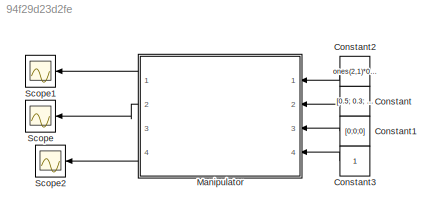
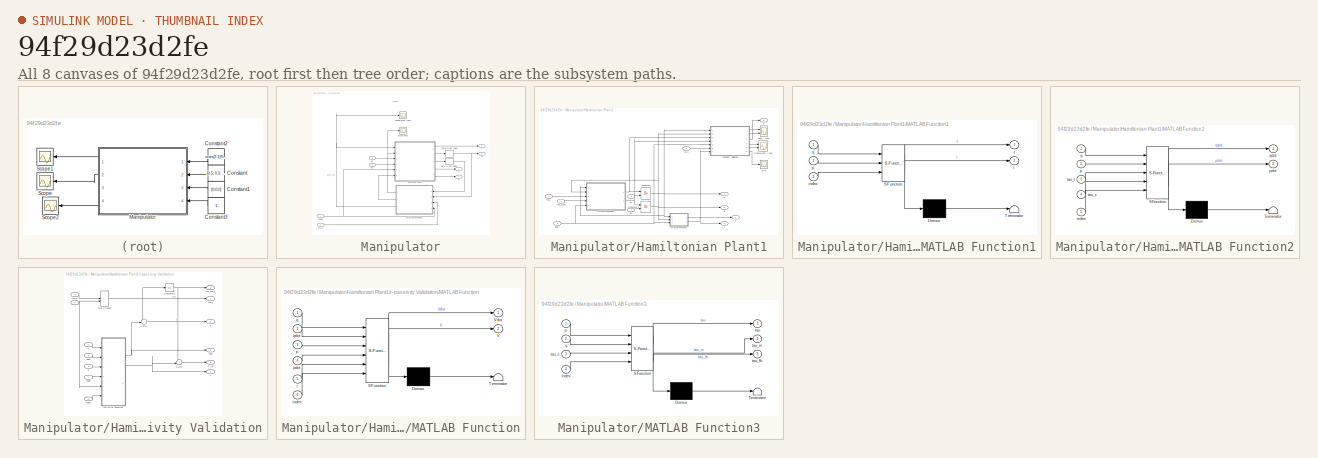
[diagram: thumbnail index - all 8 canvases of the model, root first then tree order]
MODEL slx_94f29d23d2fe
KIND model
CONFIG AbsTol = auto
CONFIG EnableMultiTasking = off
CONFIG FixedStep = auto
CONFIG MaxStep = auto
CONFIG MinStep = auto
CONFIG RelTol = 1e-3
CONFIG SampleTimeConstraint = Unconstrained
CONFIG Solver = VariableStepAuto
CONFIG SolverName = VariableStepAuto
CONFIG StartTime = 0.0
CONFIG StopTime = 10
BLOCK [Constant] Constant
  Value = [0.5; 0.3; -0.6]
BLOCK [Constant] Constant1
  Value = [0;0;0]
BLOCK [Constant] Constant2
  Value = ones(2,1)*0.01
BLOCK [Constant] Constant3
BLOCK [SubSystem] Manipulator
  Ports = [4, 4]
  RequestExecContextInheritance = off
BLOCK [Scope] Manipulator/Cooperative Input
  Floating = off
  NumInputPorts = 1
  Ports = [1]
  ScopeSpecificationString = Simulink.scopes.TimeScopeBlockCfg('CurrentConfiguration', extmgr.ConfigurationSet(extmgr.Configuration('Core','General UI',true),extmgr.Configuration('Core','Source UI',true),extmgr.Configuration('Sources','WiredSimulink',true,'DataLoggingVariableName','ScopeData1'),extmgr.Configuration('Visuals','Time Domain',true,'SerializedDisplays',{struct('MinYLimReal','-0.98424','MaxYLimReal','1.38477','YLab...<+1441ch>
BLOCK [SubSystem] Manipulator/Hamiltonian Plant1
  Ports = [6, 5]
  RequestExecContextInheritance = off
BLOCK [Scope] Manipulator/Hamiltonian Plant1/Integral Vdot + tau'r
  Floating = off
  NumInputPorts = 2
  Ports = [2]
  ScopeSpecificationString = Simulink.scopes.TimeScopeBlockCfg('CurrentConfiguration', extmgr.ConfigurationSet(extmgr.Configuration('Core','General UI',true),extmgr.Configuration('Core','Source UI',true),extmgr.Configuration('Sources','WiredSimulink',true,'DataLoggingVariableName','ScopeData5'),extmgr.Configuration('Visuals','Time Domain',true,'SerializedDisplays',{struct('MinYLimReal','-31.59653','MaxYLimReal','3.94405','YLa...<+1578ch>
BLOCK [Integrator] Manipulator/Hamiltonian Plant1/Integrator
  InitialCondition = q01
  InitialConditionSource = external
  Ports = [2, 1]
BLOCK [Integrator] Manipulator/Hamiltonian Plant1/Integrator1
  InitialCondition = p02
  InitialConditionSource = external
  Ports = [2, 1]
BLOCK [SubSystem] Manipulator/Hamiltonian Plant1/MATLAB Function1
  ErrorFcn = Stateflow.Translate.translate
  PermitHierarchicalResolution = ExplicitOnly
  Ports = [3, 2]
  RequestExecContextInheritance = off
  SFBlockType = MATLAB Function
  TreatAsAtomicUnit = on
BLOCK [Demux] Manipulator/Hamiltonian Plant1/MATLAB Function1/ Demux 
  Outputs = 1
  Ports = [1, 1]
BLOCK [S-Function] Manipulator/Hamiltonian Plant1/MATLAB Function1/ SFunction 
  EnableBusSupport = on
  FunctionName = sf_sfun
  PortCounts = [3 3]
  Ports = [3, 3]
  SFcnIsStateOwnerBlock = off
  SFunctionDeploymentMode = off
  Tag = Stateflow S-Function SingleAgent_Manipulator 22
BLOCK [Terminator] Manipulator/Hamiltonian Plant1/MATLAB Function1/ Terminator 
BLOCK [Inport] Manipulator/Hamiltonian Plant1/MATLAB Function1/index
  IconDisplay = Port number
  Port = 3
BLOCK [Inport] Manipulator/Hamiltonian Plant1/MATLAB Function1/p
  IconDisplay = Port number
  Port = 2
BLOCK [Inport] Manipulator/Hamiltonian Plant1/MATLAB Function1/q
  IconDisplay = Port number
BLOCK [Outport] Manipulator/Hamiltonian Plant1/MATLAB Function1/r
  IconDisplay = Port number
  Port = 2
BLOCK [Outport] Manipulator/Hamiltonian Plant1/MATLAB Function1/z
  IconDisplay = Port number
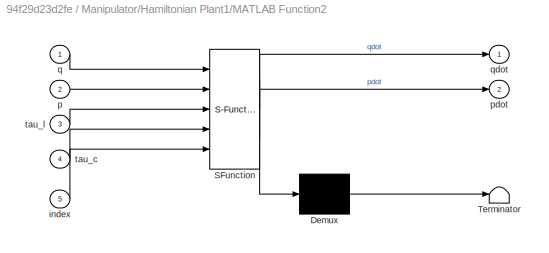
BLOCK [SubSystem] Manipulator/Hamiltonian Plant1/MATLAB Function2
  ErrorFcn = Stateflow.Translate.translate
  PermitHierarchicalResolution = ExplicitOnly
  Ports = [5, 2]
  RequestExecContextInheritance = off
  SFBlockType = MATLAB Function
  TreatAsAtomicUnit = on
BLOCK [Demux] Manipulator/Hamiltonian Plant1/MATLAB Function2/ Demux 
  Outputs = 1
  Ports = [1, 1]
BLOCK [S-Function] Manipulator/Hamiltonian Plant1/MATLAB Function2/ SFunction 
  EnableBusSupport = on
  FunctionName = sf_sfun
  PortCounts = [5 3]
  Ports = [5, 3]
  SFcnIsStateOwnerBlock = off
  SFunctionDeploymentMode = off
  Tag = Stateflow S-Function SingleAgent_Manipulator 23
BLOCK [Terminator] Manipulator/Hamiltonian Plant1/MATLAB Function2/ Terminator 
BLOCK [Inport] Manipulator/Hamiltonian Plant1/MATLAB Function2/index
  IconDisplay = Port number
  Port = 5
BLOCK [Inport] Manipulator/Hamiltonian Plant1/MATLAB Function2/p
  IconDisplay = Port number
  Port = 2
BLOCK [Outport] Manipulator/Hamiltonian Plant1/MATLAB Function2/pdot
  IconDisplay = Port number
  Port = 2
BLOCK [Inport] Manipulator/Hamiltonian Plant1/MATLAB Function2/q
  IconDisplay = Port number
BLOCK [Outport] Manipulator/Hamiltonian Plant1/MATLAB Function2/qdot
  IconDisplay = Port number
BLOCK [Inport] Manipulator/Hamiltonian Plant1/MATLAB Function2/tau_c
  IconDisplay = Port number
  Port = 4
BLOCK [Inport] Manipulator/Hamiltonian Plant1/MATLAB Function2/tau_l
  IconDisplay = Port number
  Port = 3
BLOCK [Outport] Manipulator/Hamiltonian Plant1/S
  IconDisplay = Port number
  Port = 5
BLOCK [Scope] Manipulator/Hamiltonian Plant1/S_Int
  Floating = off
  NumInputPorts = 1
  Ports = [1]
  ScopeSpecificationString = Simulink.scopes.TimeScopeBlockCfg('CurrentConfiguration', extmgr.ConfigurationSet(extmgr.Configuration('Core','General UI',true),extmgr.Configuration('Core','Source UI',true),extmgr.Configuration('Sources','WiredSimulink',true,'DataLoggingVariableName','ScopeData1'),extmgr.Configuration('Visuals','Time Domain',true,'SerializedDisplays',{struct('MinYLimReal','-327.91107','MaxYLimReal','36.43456','Y...<+1511ch>
BLOCK [Inport] Manipulator/Hamiltonian Plant1/index
  IconDisplay = Port number
  Port = 5
BLOCK [Outport] Manipulator/Hamiltonian Plant1/p
  IconDisplay = Port number
  Port = 3
BLOCK [Inport] Manipulator/Hamiltonian Plant1/p0
  IconDisplay = Port number
  Port = 4
BLOCK [Outport] Manipulator/Hamiltonian Plant1/q
  IconDisplay = Port number
  Port = 2
BLOCK [Inport] Manipulator/Hamiltonian Plant1/q0
  IconDisplay = Port number
  Port = 3
BLOCK [Outport] Manipulator/Hamiltonian Plant1/r
  IconDisplay = Port number
BLOCK [SubSystem] Manipulator/Hamiltonian Plant1/r-passivity Validation
  Ports = [7, 6]
  RequestExecContextInheritance = off
BLOCK [DotProduct] Manipulator/Hamiltonian Plant1/r-passivity Validation/Dot Product
  OutDataTypeStr = Inherit: Inherit via internal rule
BLOCK [Integrator] Manipulator/Hamiltonian Plant1/r-passivity Validation/Integrator2
  Ports = [1, 1]
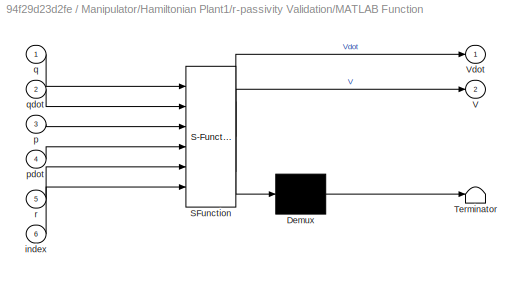
BLOCK [SubSystem] Manipulator/Hamiltonian Plant1/r-passivity Validation/MATLAB Function
  ErrorFcn = Stateflow.Translate.translate
  PermitHierarchicalResolution = ExplicitOnly
  Ports = [6, 2]
  RequestExecContextInheritance = off
  SFBlockType = MATLAB Function
  TreatAsAtomicUnit = on
BLOCK [Demux] Manipulator/Hamiltonian Plant1/r-passivity Validation/MATLAB Function/ Demux 
  Outputs = 1
  Ports = [1, 1]
BLOCK [S-Function] Manipulator/Hamiltonian Plant1/r-passivity Validation/MATLAB Function/ SFunction 
  EnableBusSupport = on
  FunctionName = sf_sfun
  PortCounts = [6 3]
  Ports = [6, 3]
  SFcnIsStateOwnerBlock = off
  SFunctionDeploymentMode = off
  Tag = Stateflow S-Function SingleAgent_Manipulator 24
BLOCK [Terminator] Manipulator/Hamiltonian Plant1/r-passivity Validation/MATLAB Function/ Terminator 
BLOCK [Outport] Manipulator/Hamiltonian Plant1/r-passivity Validation/MATLAB Function/V
  IconDisplay = Port number
  Port = 2
BLOCK [Outport] Manipulator/Hamiltonian Plant1/r-passivity Validation/MATLAB Function/Vdot
  IconDisplay = Port number
BLOCK [Inport] Manipulator/Hamiltonian Plant1/r-passivity Validation/MATLAB Function/index
  IconDisplay = Port number
  Port = 6
BLOCK [Inport] Manipulator/Hamiltonian Plant1/r-passivity Validation/MATLAB Function/p
  IconDisplay = Port number
  Port = 3
BLOCK [Inport] Manipulator/Hamiltonian Plant1/r-passivity Validation/MATLAB Function/pdot
  IconDisplay = Port number
  Port = 4
BLOCK [Inport] Manipulator/Hamiltonian Plant1/r-passivity Validation/MATLAB Function/q
  IconDisplay = Port number
BLOCK [Inport] Manipulator/Hamiltonian Plant1/r-passivity Validation/MATLAB Function/qdot
  IconDisplay = Port number
  Port = 2
BLOCK [Inport] Manipulator/Hamiltonian Plant1/r-passivity Validation/MATLAB Function/r
  IconDisplay = Port number
  Port = 5
BLOCK [Outport] Manipulator/Hamiltonian Plant1/r-passivity Validation/S
  IconDisplay = Port number
  Port = 3
BLOCK [Outport] Manipulator/Hamiltonian Plant1/r-passivity Validation/S_Int
  IconDisplay = Port number
  Port = 6
BLOCK [Sum] Manipulator/Hamiltonian Plant1/r-passivity Validation/Sum2
  IconShape = round
  InputSameDT = off
  Inputs = +-|
  OutDataTypeStr = Inherit: Inherit via internal rule
  Ports = [2, 1]
  SaturateOnIntegerOverflow = off
BLOCK [Sum] Manipulator/Hamiltonian Plant1/r-passivity Validation/Sum4
  IconShape = round
  InputSameDT = off
  Inputs = +-|
  OutDataTypeStr = Inherit: Inherit via internal rule
  Ports = [2, 1]
  SaturateOnIntegerOverflow = off
BLOCK [Outport] Manipulator/Hamiltonian Plant1/r-passivity Validation/V
  IconDisplay = Port number
  Port = 4
BLOCK [Inport] Manipulator/Hamiltonian Plant1/r-passivity Validation/index
  IconDisplay = Port number
  Port = 5
BLOCK [Outport] Manipulator/Hamiltonian Plant1/r-passivity Validation/int_tau_r
  IconDisplay = Port number
  Port = 5
BLOCK [Inport] Manipulator/Hamiltonian Plant1/r-passivity Validation/p
  IconDisplay = Port number
  Port = 2
BLOCK [Inport] Manipulator/Hamiltonian Plant1/r-passivity Validation/pdot
  IconDisplay = Port number
  Port = 4
BLOCK [Inport] Manipulator/Hamiltonian Plant1/r-passivity Validation/q
  IconDisplay = Port number
BLOCK [Inport] Manipulator/Hamiltonian Plant1/r-passivity Validation/qdot
  IconDisplay = Port number
  Port = 3
BLOCK [Inport] Manipulator/Hamiltonian Plant1/r-passivity Validation/r
  IconDisplay = Port number
  Port = 7
BLOCK [Inport] Manipulator/Hamiltonian Plant1/r-passivity Validation/tau_c
  IconDisplay = Port number
  Port = 6
BLOCK [Outport] Manipulator/Hamiltonian Plant1/r-passivity Validation/tau_r
  IconDisplay = Port number
  Port = 2
BLOCK [Outport] Manipulator/Hamiltonian Plant1/r-passivity Validation/vdot
  IconDisplay = Port number
BLOCK [Inport] Manipulator/Hamiltonian Plant1/tau_c
  IconDisplay = Port number
  Port = 6
BLOCK [Inport] Manipulator/Hamiltonian Plant1/tau_c_hat
  IconDisplay = Port number
BLOCK [Inport] Manipulator/Hamiltonian Plant1/tau_l
  IconDisplay = Port number
  Port = 2
BLOCK [Scope] Manipulator/Hamiltonian Plant1/vdot + tau'r
  Floating = off
  NumInputPorts = 2
  Ports = [2]
  ScopeSpecificationString = Simulink.scopes.TimeScopeBlockCfg('CurrentConfiguration', extmgr.ConfigurationSet(extmgr.Configuration('Core','General UI',true),extmgr.Configuration('Core','Source UI',true),extmgr.Configuration('Sources','WiredSimulink',true,'DataLoggingVariableName','ScopeData3'),extmgr.Configuration('Visuals','Time Domain',true,'SerializedDisplays',{struct('MinYLimReal','-163.17397','MaxYLimReal','27.52284','Y...<+1541ch>
BLOCK [Outport] Manipulator/Hamiltonian Plant1/z
  IconDisplay = Port number
  Port = 4
BLOCK [Scope] Manipulator/Local Input
  Floating = off
  NumInputPorts = 1
  Ports = [1]
  ScopeSpecificationString = Simulink.scopes.TimeScopeBlockCfg('CurrentConfiguration', extmgr.ConfigurationSet(extmgr.Configuration('Core','General UI',true),extmgr.Configuration('Core','Source UI',true),extmgr.Configuration('Sources','WiredSimulink',true,'DataLoggingVariableName','ScopeData2'),extmgr.Configuration('Visuals','Time Domain',true,'SerializedDisplays',{struct('MinYLimReal','-15.04673','MaxYLimReal','0.06127','YLa...<+1489ch>
BLOCK [SubSystem] Manipulator/MATLAB Function3
  ErrorFcn = Stateflow.Translate.translate
  PermitHierarchicalResolution = ExplicitOnly
  Ports = [4, 3]
  RequestExecContextInheritance = off
  SFBlockType = MATLAB Function
  TreatAsAtomicUnit = on
BLOCK [Demux] Manipulator/MATLAB Function3/ Demux 
  Outputs = 1
  Ports = [1, 1]
BLOCK [S-Function] Manipulator/MATLAB Function3/ SFunction 
  EnableBusSupport = on
  FunctionName = sf_sfun
  PortCounts = [4 4]
  Ports = [4, 4]
  SFcnIsStateOwnerBlock = off
  SFunctionDeploymentMode = off
  Tag = Stateflow S-Function SingleAgent_Manipulator 26
BLOCK [Terminator] Manipulator/MATLAB Function3/ Terminator 
BLOCK [Inport] Manipulator/MATLAB Function3/index
  IconDisplay = Port number
  Port = 4
BLOCK [Inport] Manipulator/MATLAB Function3/p
  IconDisplay = Port number
BLOCK [Inport] Manipulator/MATLAB Function3/q
  IconDisplay = Port number
  Port = 2
BLOCK [Outport] Manipulator/MATLAB Function3/tau
  IconDisplay = Port number
BLOCK [Inport] Manipulator/MATLAB Function3/tau_c
  IconDisplay = Port number
  Port = 3
BLOCK [Outport] Manipulator/MATLAB Function3/tau_fb
  IconDisplay = Port number
  Port = 3
BLOCK [Outport] Manipulator/MATLAB Function3/tau_m
  IconDisplay = Port number
  Port = 2
BLOCK [Outport] Manipulator/S
  IconDisplay = Port number
  Port = 4
BLOCK [ZeroOrderHold] Manipulator/Zero-Order Hold2
  SampleTime = Ts
BLOCK [ZeroOrderHold] Manipulator/Zero-Order Hold4
  SampleTime = Ts
BLOCK [Inport] Manipulator/index
  IconDisplay = Port number
  Port = 4
BLOCK [Inport] Manipulator/p0
  IconDisplay = Port number
  Port = 3
BLOCK [Outport] Manipulator/q
  IconDisplay = Port number
  Port = 2
BLOCK [Inport] Manipulator/q0
  IconDisplay = Port number
  Port = 2
BLOCK [Outport] Manipulator/r
  IconDisplay = Port number
  Port = 3
BLOCK [Inport] Manipulator/tau_c
  IconDisplay = Port number
BLOCK [Outport] Manipulator/z
  IconDisplay = Port number
BLOCK [Scope] Scope
  Floating = off
  NumInputPorts = 1
  Ports = [1]
  ScopeSpecificationString = Simulink.scopes.TimeScopeBlockCfg('CurrentConfiguration', extmgr.ConfigurationSet(extmgr.Configuration('Core','General UI',true),extmgr.Configuration('Core','Source UI',true),extmgr.Configuration('Sources','WiredSimulink',true),extmgr.Configuration('Visuals','Time Domain',true,'SerializedDisplays',{struct('MinYLimReal','-1.64372','MaxYLimReal','1.60202','YLabelReal','','MinYLimMag','0.00000','MaxY...<+1476ch>
BLOCK [Scope] Scope1
  Floating = off
  NumInputPorts = 1
  Ports = [1]
  ScopeSpecificationString = Simulink.scopes.TimeScopeBlockCfg('CurrentConfiguration', extmgr.ConfigurationSet(extmgr.Configuration('Core','General UI',true),extmgr.Configuration('Core','Source UI',true),extmgr.Configuration('Sources','WiredSimulink',true,'DataLoggingVariableName','ScopeData1'),extmgr.Configuration('Visuals','Time Domain',true,'SerializedDisplays',{struct('MinYLimReal','-1.43332','MaxYLimReal','2.61359','YLab...<+1468ch>
BLOCK [Scope] Scope2
  Floating = off
  NumInputPorts = 1
  Ports = [1]
  ScopeSpecificationString = Simulink.scopes.TimeScopeBlockCfg('CurrentConfiguration', extmgr.ConfigurationSet(extmgr.Configuration('Core','General UI',true),extmgr.Configuration('Core','Source UI',true),extmgr.Configuration('Sources','WiredSimulink',true,'DataLoggingVariableName','ScopeData3'),extmgr.Configuration('Visuals','Time Domain',true,'SerializedDisplays',{struct('MinYLimReal','-1.83218','MaxYLimReal','0.20368','YLab...<+1477ch>
ANNOTATION Manipulator: Scopes
LINE Constant1:1 -> Manipulator:3
LINE Constant2:1 -> Manipulator:1
LINE Constant3:1 -> Manipulator:4
LINE Constant:1 -> Manipulator:2
NET Manipulator/Hamiltonian Plant1/Integrator1:1 -> Manipulator/Hamiltonian Plant1/MATLAB Function1:2, Manipulator/Hamiltonian Plant1/MATLAB Function2:2, Manipulator/Hamiltonian Plant1/p:1, Manipulator/Hamiltonian Plant1/r-passivity Validation:2
NET Manipulator/Hamiltonian Plant1/Integrator:1 -> Manipulator/Hamiltonian Plant1/MATLAB Function1:1, Manipulator/Hamiltonian Plant1/MATLAB Function2:1, Manipulator/Hamiltonian Plant1/q:1, Manipulator/Hamiltonian Plant1/r-passivity Validation:1
LINE Manipulator/Hamiltonian Plant1/MATLAB Function1:1 -> Manipulator/Hamiltonian Plant1/z:1
NET Manipulator/Hamiltonian Plant1/MATLAB Function1:2 -> Manipulator/Hamiltonian Plant1/r-passivity Validation:7, Manipulator/Hamiltonian Plant1/r:1
NET Manipulator/Hamiltonian Plant1/MATLAB Function2:1 -> Manipulator/Hamiltonian Plant1/Integrator:1, Manipulator/Hamiltonian Plant1/r-passivity Validation:3
NET Manipulator/Hamiltonian Plant1/MATLAB Function2:2 -> Manipulator/Hamiltonian Plant1/Integrator1:1, Manipulator/Hamiltonian Plant1/r-passivity Validation:4
NET Manipulator/Hamiltonian Plant1/index:1 -> Manipulator/Hamiltonian Plant1/MATLAB Function1:3, Manipulator/Hamiltonian Plant1/MATLAB Function2:5, Manipulator/Hamiltonian Plant1/r-passivity Validation:5
LINE Manipulator/Hamiltonian Plant1/p0:1 -> Manipulator/Hamiltonian Plant1/Integrator1:2
LINE Manipulator/Hamiltonian Plant1/q0:1 -> Manipulator/Hamiltonian Plant1/Integrator:2
NET Manipulator/Hamiltonian Plant1/r-passivity Validation/Dot Product:1 -> Manipulator/Hamiltonian Plant1/r-passivity Validation/Integrator2:1, Manipulator/Hamiltonian Plant1/r-passivity Validation/Sum4:1, Manipulator/Hamiltonian Plant1/r-passivity Validation/tau_r:1
NET Manipulator/Hamiltonian Plant1/r-passivity Validation/Integrator2:1 -> Manipulator/Hamiltonian Plant1/r-passivity Validation/Sum2:1, Manipulator/Hamiltonian Plant1/r-passivity Validation/int_tau_r:1
NET Manipulator/Hamiltonian Plant1/r-passivity Validation/MATLAB Function:1 -> Manipulator/Hamiltonian Plant1/r-passivity Validation/Sum4:2, Manipulator/Hamiltonian Plant1/r-passivity Validation/vdot:1
NET Manipulator/Hamiltonian Plant1/r-passivity Validation/MATLAB Function:2 -> Manipulator/Hamiltonian Plant1/r-passivity Validation/Sum2:2, Manipulator/Hamiltonian Plant1/r-passivity Validation/V:1
LINE Manipulator/Hamiltonian Plant1/r-passivity Validation/Sum2:1 -> Manipulator/Hamiltonian Plant1/r-passivity Validation/S_Int:1
LINE Manipulator/Hamiltonian Plant1/r-passivity Validation/Sum4:1 -> Manipulator/Hamiltonian Plant1/r-passivity Validation/S:1
LINE Manipulator/Hamiltonian Plant1/r-passivity Validation/index:1 -> Manipulator/Hamiltonian Plant1/r-passivity Validation/MATLAB Function:6
LINE Manipulator/Hamiltonian Plant1/r-passivity Validation/p:1 -> Manipulator/Hamiltonian Plant1/r-passivity Validation/MATLAB Function:3
LINE Manipulator/Hamiltonian Plant1/r-passivity Validation/pdot:1 -> Manipulator/Hamiltonian Plant1/r-passivity Validation/MATLAB Function:4
LINE Manipulator/Hamiltonian Plant1/r-passivity Validation/q:1 -> Manipulator/Hamiltonian Plant1/r-passivity Validation/MATLAB Function:1
LINE Manipulator/Hamiltonian Plant1/r-passivity Validation/qdot:1 -> Manipulator/Hamiltonian Plant1/r-passivity Validation/MATLAB Function:2
NET Manipulator/Hamiltonian Plant1/r-passivity Validation/r:1 -> Manipulator/Hamiltonian Plant1/r-passivity Validation/Dot Product:2, Manipulator/Hamiltonian Plant1/r-passivity Validation/MATLAB Function:5
LINE Manipulator/Hamiltonian Plant1/r-passivity Validation/tau_c:1 -> Manipulator/Hamiltonian Plant1/r-passivity Validation/Dot Product:1
LINE Manipulator/Hamiltonian Plant1/r-passivity Validation:1 -> Manipulator/Hamiltonian Plant1/vdot + tau'r:1
LINE Manipulator/Hamiltonian Plant1/r-passivity Validation:2 -> Manipulator/Hamiltonian Plant1/vdot + tau'r:2
LINE Manipulator/Hamiltonian Plant1/r-passivity Validation:3 -> Manipulator/Hamiltonian Plant1/S:1
LINE Manipulator/Hamiltonian Plant1/r-passivity Validation:4 -> Manipulator/Hamiltonian Plant1/Integral Vdot + tau'r:1
LINE Manipulator/Hamiltonian Plant1/r-passivity Validation:5 -> Manipulator/Hamiltonian Plant1/Integral Vdot + tau'r:2
LINE Manipulator/Hamiltonian Plant1/r-passivity Validation:6 -> Manipulator/Hamiltonian Plant1/S_Int:1
LINE Manipulator/Hamiltonian Plant1/tau_c:1 -> Manipulator/Hamiltonian Plant1/r-passivity Validation:6
LINE Manipulator/Hamiltonian Plant1/tau_c_hat:1 -> Manipulator/Hamiltonian Plant1/MATLAB Function2:4
LINE Manipulator/Hamiltonian Plant1/tau_l:1 -> Manipulator/Hamiltonian Plant1/MATLAB Function2:3
LINE Manipulator/Hamiltonian Plant1:1 -> Manipulator/r:1
LINE Manipulator/Hamiltonian Plant1:2 -> Manipulator/Zero-Order Hold2:1
LINE Manipulator/Hamiltonian Plant1:3 -> Manipulator/Zero-Order Hold4:1
LINE Manipulator/Hamiltonian Plant1:4 -> Manipulator/z:1
LINE Manipulator/Hamiltonian Plant1:5 -> Manipulator/S:1
NET Manipulator/MATLAB Function3:1 -> Manipulator/Hamiltonian Plant1:2, Manipulator/Local Input:1
LINE Manipulator/MATLAB Function3:2 -> Manipulator/Hamiltonian Plant1:6
NET Manipulator/MATLAB Function3:3 -> Manipulator/Cooperative Input:1, Manipulator/Hamiltonian Plant1:1
NET Manipulator/Zero-Order Hold2:1 -> Manipulator/MATLAB Function3:2, Manipulator/q:1
LINE Manipulator/Zero-Order Hold4:1 -> Manipulator/MATLAB Function3:1
NET Manipulator/index:1 -> Manipulator/Hamiltonian Plant1:5, Manipulator/MATLAB Function3:4
LINE Manipulator/p0:1 -> Manipulator/Hamiltonian Plant1:4
LINE Manipulator/q0:1 -> Manipulator/Hamiltonian Plant1:3
LINE Manipulator/tau_c:1 -> Manipulator/MATLAB Function3:3
LINE Manipulator:1 -> Scope1:1
LINE Manipulator:2 -> Scope:1
LINE Manipulator:4 -> Scope2:1
note: NET lines group one-source signal fan-out (src -> all destinations, sorted); 1:1 wires keep LINE
CHART Manipulator/Hamiltonian Plant1/MATLAB Function1 states=1 transitions=1
  STATE_LABEL 'eML_blk_kernel()'
  STATE_LABEL "SCRIPT:\nfunction [z, r] = toz(q, p, index)\n\n    coder.extrinsic('Manipulator_z');\n    z = zeros(2, 1);\n    r = zeros(2, 1);\n    [z, r] = Manipulator_z(q, p, index);\n"
CHART Manipulator/Hamiltonian Plant1/MATLAB Function2 states=1 transitions=1
  STATE_LABEL 'eML_blk_kernel()'
  STATE_LABEL "SCRIPT:\nfunction [qdot, pdot] = fcn(q, p, tau_l, tau_c, index)\n\n    coder.extrinsic('Manipulator_Dynamics');\n    qdot = zeros(3, 1);\n    pdot = zeros(3, 1);\n    [qdot, pdot] = Manipulator_Dynamics(q, p, tau_l, tau_c, index);\n"
CHART Manipulator/Hamiltonian Plant1/r-passivity Validation/MATLAB Function states=1 transitions=1
  STATE_LABEL 'eML_blk_kernel()'
  STATE_LABEL "SCRIPT:\nfunction [Vdot, V] = fcn(q, qdot, p, pdot, r, index)\n\n    coder.extrinsic('Manipulator_R');\n    V = 0; Vdot = 0;\n    [V, Vdot] = Manipulator_R(q, qdot,p, pdot, r, index);\nend"
CHART Manipulator/MATLAB Function3 states=1 transitions=1
  STATE_LABEL 'eML_blk_kernel()'
  STATE_LABEL "SCRIPT:\nfunction [tau, tau_m, tau_fb] = LocalControl(p, q, tau_c, index)\n    \n\ncoder.extrinsic('Manipulator_Control');\ntau = zeros(3, 1);\ntau_fb = zeros(2, 1);\ntau_m = zeros(2, 1);\n[tau, tau_m, tau_fb] = Manipulator_Control(q, p, tau_c, index);\n\n"
